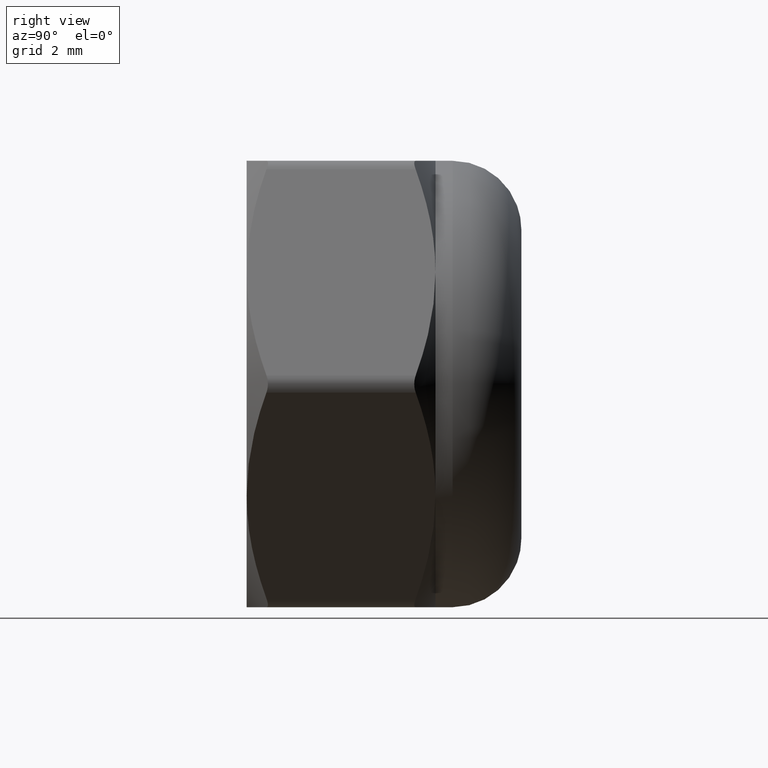
[diagram: clean part render]
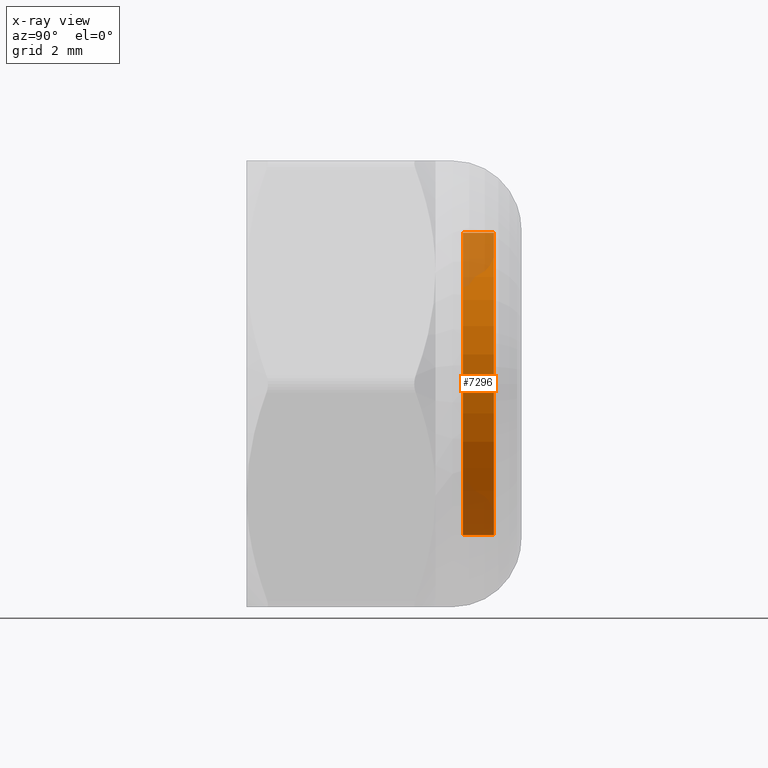
[diagram: x-ray — body ghosted, one internal face saturated and labeled with its STEP entity id]
A machine part, right view, then the same camera in x-ray: the body is ghosted and one INTERNAL B-rep face — a face not visible from any outside direction — is saturated and labeled: STEP entity #7296.
In plain terms, the highlighted cylindrical surface (bore or boss wall) has radius 4.4 mm, axis along (-0, -1, -0).
Its self-contained STEP definition (entity closure, byte-faithful):
#123 = DIRECTION ( 'NONE',  ( 0.000000000000000000, 0.000000000000000000, 1.000000000000000000 ) ) ;
#1785 = EDGE_CURVE ( 'NONE', #3033, #3033, #12584, .T. ) ;
#2721 = CARTESIAN_POINT ( 'NONE',  ( 0.000000000000000000, 16.94507934888323319, 0.000000000000000000 ) ) ;
#3033 = VERTEX_POINT ( 'NONE', #4794 ) ;
#4358 = AXIS2_PLACEMENT_3D ( 'NONE', #2721, #10500, #10391 ) ;
#4612 = DIRECTION ( 'NONE',  ( 0.000000000000000000, 0.000000000000000000, 1.000000000000000000 ) ) ;
#4794 = CARTESIAN_POINT ( 'NONE',  ( 0.000000000000000000, 4.450000000000001066, 4.399999999999999467 ) ) ;
#5314 = DIRECTION ( 'NONE',  ( 0.000000000000000000, 1.000000000000000000, 0.000000000000000000 ) ) ;
#7086 = FACE_OUTER_BOUND ( 'NONE', #14735, .T. ) ;
#7289 = EDGE_CURVE ( 'NONE', #9431, #9431, #16102, .T. ) ;
#7296 = ADVANCED_FACE ( 'NONE', ( #13093, #7086 ), #7656, .T. ) ;
#7656 = CYLINDRICAL_SURFACE ( 'NONE', #4358, 4.399999999999999467 ) ;
#7845 = ORIENTED_EDGE ( 'NONE', *, *, #1785, .F. ) ;
#8359 = CARTESIAN_POINT ( 'NONE',  ( 0.000000000000000000, 4.450000000000001066, 0.000000000000000000 ) ) ;
#9108 = CARTESIAN_POINT ( 'NONE',  ( 0.000000000000000000, 3.550000000000000711, 0.000000000000000000 ) ) ;
#9431 = VERTEX_POINT ( 'NONE', #9807 ) ;
#9482 = AXIS2_PLACEMENT_3D ( 'NONE', #9108, #5314, #123 ) ;
#9748 = DIRECTION ( 'NONE',  ( 0.000000000000000000, 1.000000000000000000, 0.000000000000000000 ) ) ;
#9807 = CARTESIAN_POINT ( 'NONE',  ( 0.000000000000000000, 3.550000000000000711, 4.399999999999999467 ) ) ;
#10391 = DIRECTION ( 'NONE',  ( 0.000000000000000000, 0.000000000000000000, -1.000000000000000000 ) ) ;
#10404 = EDGE_LOOP ( 'NONE', ( #14652 ) ) ;
#10500 = DIRECTION ( 'NONE',  ( -0.000000000000000000, -1.000000000000000000, -0.000000000000000000 ) ) ;
#12142 = AXIS2_PLACEMENT_3D ( 'NONE', #8359, #9748, #4612 ) ;
#12584 = CIRCLE ( 'NONE', #12142, 4.399999999999999467 ) ;
#13093 = FACE_OUTER_BOUND ( 'NONE', #10404, .T. ) ;
#14652 = ORIENTED_EDGE ( 'NONE', *, *, #7289, .T. ) ;
#14735 = EDGE_LOOP ( 'NONE', ( #7845 ) ) ;
#16102 = CIRCLE ( 'NONE', #9482, 4.399999999999999467 ) ;